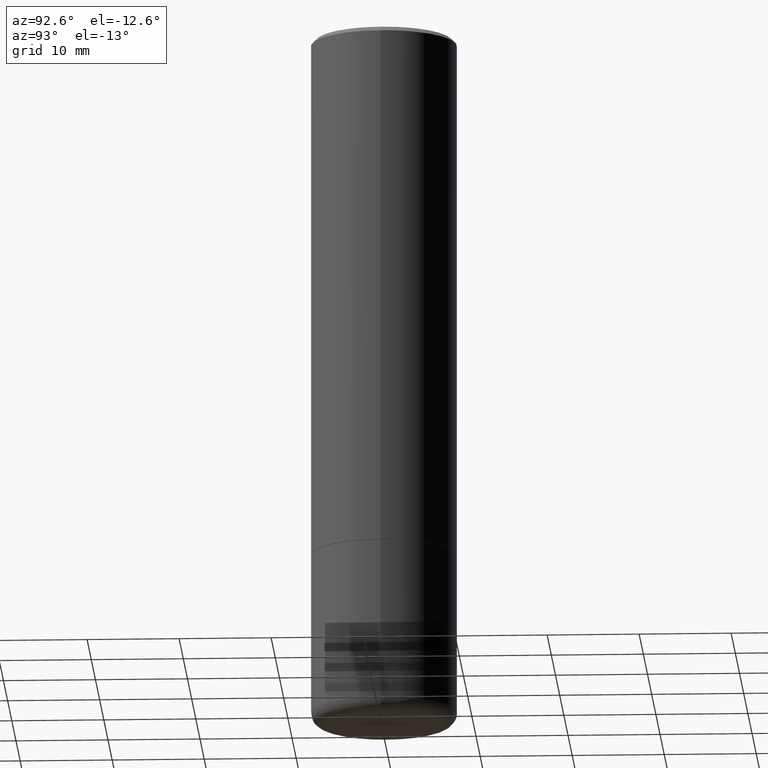
[diagram: clean part render]
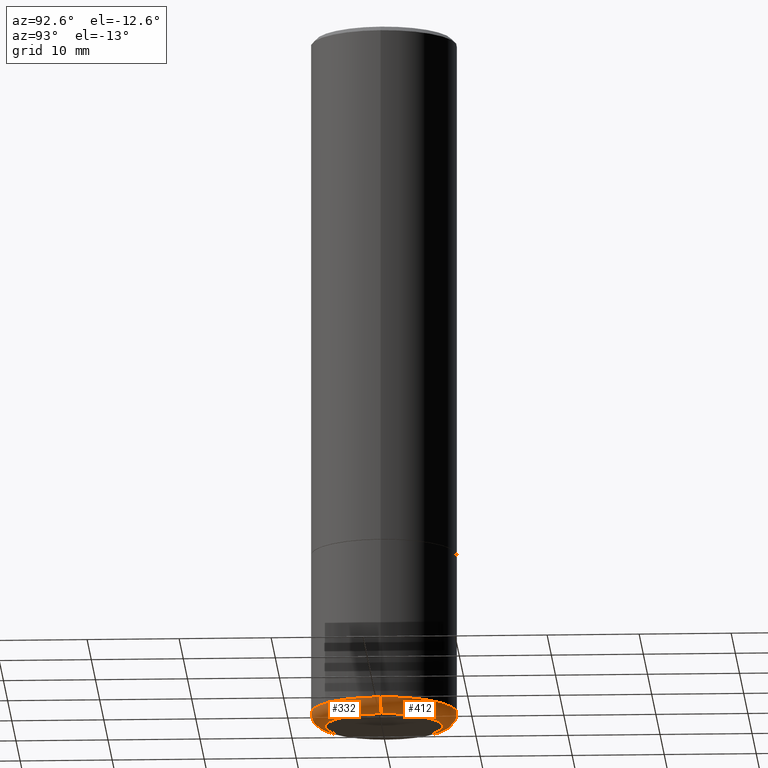
[diagram: same view with one multi-face feature highlighted, each face labeled with its STEP entity id]
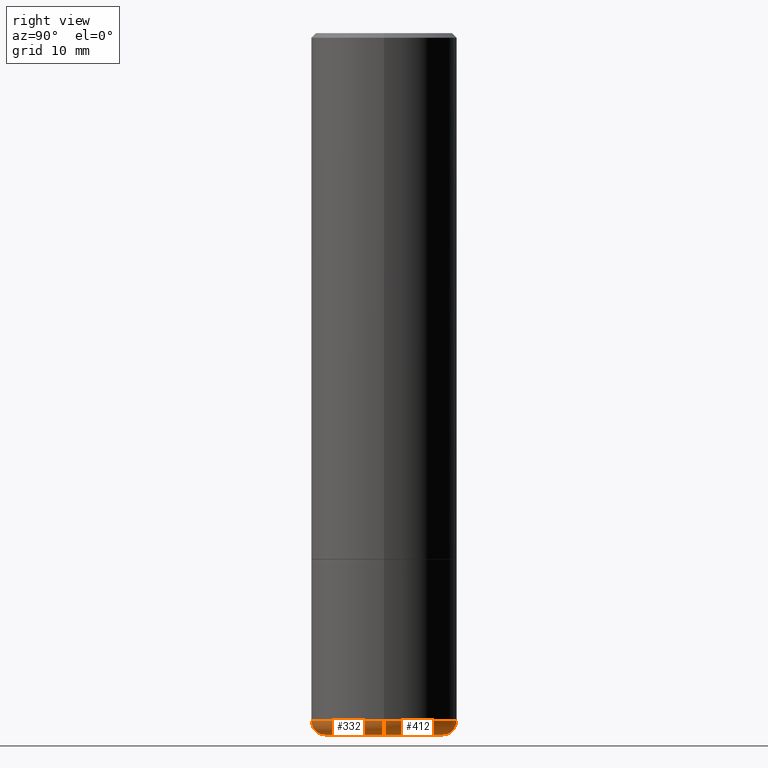
[diagram: same view with one multi-face feature highlighted, each face labeled with its STEP entity id]
A machine part, auxiliary view. The highlighted faces form ONE feature: a constant-radius fillet chain: 2 tangent blend faces with common blend radius 1.524 mm. The faces share edges in the B-rep.
A second angle (right view) of the same feature is appended — it is thin or edge-on in the first view.
Their STEP definitions:
[1] entity #332 (Torus):
#5 = EDGE_CURVE ( 'NONE', #424, #370, #228, .T. ) ;
#19 = AXIS2_PLACEMENT_3D ( 'NONE', #172, #212, #134 ) ;
#22 = CIRCLE ( 'NONE', #19, 0.06000000000000001166 ) ;
#31 = CARTESIAN_POINT ( 'NONE',  ( 0.2514528556137646809, -1.219950392283044754E-14, -2.999990861709383783 ) ) ;
#40 = CARTESIAN_POINT ( 'NONE',  ( 7.189678290184301639E-29, -1.026495513619884961E-14, -2.940000000000000391 ) ) ;
#57 = AXIS2_PLACEMENT_3D ( 'NONE', #208, #415, #166 ) ;
#88 = ORIENTED_EDGE ( 'NONE', *, *, #236, .F. ) ;
#94 = VERTEX_POINT ( 'NONE', #373 ) ;
#99 = ORIENTED_EDGE ( 'NONE', *, *, #5, .T. ) ;
#101 = CARTESIAN_POINT ( 'NONE',  ( -0.2514528556137646809, -8.718526204409729292E-15, -2.999990861709383783 ) ) ;
#103 = DIRECTION ( 'NONE',  ( -6.982962677686266711E-15, -1.000000000000000000, 3.491481338843145583E-15 ) ) ;
#108 = CARTESIAN_POINT ( 'NONE',  ( -0.3125000000000000000, -8.044509086948536533E-15, -2.940000000000000391 ) ) ;
#115 = AXIS2_PLACEMENT_3D ( 'NONE', #40, #169, #277 ) ;
#129 = DIRECTION ( 'NONE',  ( -2.445468806185136597E-29, 3.491481338843145583E-15, 1.000000000000000000 ) ) ;
#134 = DIRECTION ( 'NONE',  ( -1.000000000000000000, 7.105427357601006592E-15, 0.000000000000000000 ) ) ;
#139 = CIRCLE ( 'NONE', #115, 0.3125000000000000000 ) ;
#157 = DIRECTION ( 'NONE',  ( 1.000000000000000000, -6.982962677686269077E-15, 0.000000000000000000 ) ) ;
#158 = AXIS2_PLACEMENT_3D ( 'NONE', #339, #103, #406 ) ;
#164 = AXIS2_PLACEMENT_3D ( 'NONE', #269, #129, #157 ) ;
#166 = DIRECTION ( 'NONE',  ( 1.000000000000000000, -6.982962677686269077E-15, 4.883557194083114022E-29 ) ) ;
#169 = DIRECTION ( 'NONE',  ( -2.445468806185136597E-29, 3.491481338843145583E-15, 1.000000000000000000 ) ) ;
#172 = CARTESIAN_POINT ( 'NONE',  ( -0.2525000000000000022, -8.470834728404597024E-15, -2.940000000000000391 ) ) ;
#181 = EDGE_LOOP ( 'NONE', ( #432, #99, #323, #88 ) ) ;
#208 = CARTESIAN_POINT ( 'NONE',  ( 7.189678290184301639E-29, -1.026495513619884961E-14, -2.940000000000000391 ) ) ;
#212 = DIRECTION ( 'NONE',  ( 7.105427357601001859E-15, 1.000000000000000000, -3.491481338843145583E-15 ) ) ;
#214 = CIRCLE ( 'NONE', #158, 0.06000000000000001166 ) ;
#228 = CIRCLE ( 'NONE', #164, 0.2514528556137634041 ) ;
#236 = EDGE_CURVE ( 'NONE', #429, #94, #139, .T. ) ;
#244 = FACE_OUTER_BOUND ( 'NONE', #181, .T. ) ;
#269 = CARTESIAN_POINT ( 'NONE',  ( 7.336384071150766432E-29, -1.047441211035828263E-14, -2.999990861709383783 ) ) ;
#274 = TOROIDAL_SURFACE ( 'NONE', #57, 0.2525000000000000022, 0.06000000000000004635 ) ;
#277 = DIRECTION ( 'NONE',  ( 1.000000000000000000, -6.982962677686269077E-15, 0.000000000000000000 ) ) ;
#323 = ORIENTED_EDGE ( 'NONE', *, *, #423, .T. ) ;
#332 = ADVANCED_FACE ( 'NONE', ( #244 ), #274, .T. ) ;
#339 = CARTESIAN_POINT ( 'NONE',  ( 0.2525000000000000022, -1.202815321231463133E-14, -2.940000000000000391 ) ) ;
#370 = VERTEX_POINT ( 'NONE', #31 ) ;
#373 = CARTESIAN_POINT ( 'NONE',  ( 0.3125000000000000000, -1.244713097297580796E-14, -2.940000000000000391 ) ) ;
#404 = EDGE_CURVE ( 'NONE', #424, #429, #22, .T. ) ;
#406 = DIRECTION ( 'NONE',  ( 1.000000000000000000, -6.982962677686266711E-15, 0.000000000000000000 ) ) ;
#415 = DIRECTION ( 'NONE',  ( -2.445468806185136597E-29, 3.491481338843145583E-15, 1.000000000000000000 ) ) ;
#423 = EDGE_CURVE ( 'NONE', #370, #94, #214, .T. ) ;
#424 = VERTEX_POINT ( 'NONE', #101 ) ;
#429 = VERTEX_POINT ( 'NONE', #108 ) ;
#432 = ORIENTED_EDGE ( 'NONE', *, *, #404, .F. ) ;
[2] entity #412 (Torus):
#13 = CARTESIAN_POINT ( 'NONE',  ( 7.189678290184301639E-29, -1.026495513619884961E-14, -2.940000000000000391 ) ) ;
#18 = AXIS2_PLACEMENT_3D ( 'NONE', #13, #219, #386 ) ;
#19 = AXIS2_PLACEMENT_3D ( 'NONE', #172, #212, #134 ) ;
#22 = CIRCLE ( 'NONE', #19, 0.06000000000000001166 ) ;
#31 = CARTESIAN_POINT ( 'NONE',  ( 0.2514528556137646809, -1.219950392283044754E-14, -2.999990861709383783 ) ) ;
#43 = DIRECTION ( 'NONE',  ( 1.000000000000000000, -6.982962677686269077E-15, 4.883557194083114022E-29 ) ) ;
#56 = ORIENTED_EDGE ( 'NONE', *, *, #321, .T. ) ;
#87 = AXIS2_PLACEMENT_3D ( 'NONE', #203, #270, #43 ) ;
#93 = TOROIDAL_SURFACE ( 'NONE', #87, 0.2525000000000000022, 0.06000000000000004635 ) ;
#94 = VERTEX_POINT ( 'NONE', #373 ) ;
#101 = CARTESIAN_POINT ( 'NONE',  ( -0.2514528556137646809, -8.718526204409729292E-15, -2.999990861709383783 ) ) ;
#103 = DIRECTION ( 'NONE',  ( -6.982962677686266711E-15, -1.000000000000000000, 3.491481338843145583E-15 ) ) ;
#108 = CARTESIAN_POINT ( 'NONE',  ( -0.3125000000000000000, -8.044509086948536533E-15, -2.940000000000000391 ) ) ;
#113 = CIRCLE ( 'NONE', #18, 0.3125000000000000000 ) ;
#120 = ORIENTED_EDGE ( 'NONE', *, *, #423, .F. ) ;
#127 = ORIENTED_EDGE ( 'NONE', *, *, #404, .T. ) ;
#134 = DIRECTION ( 'NONE',  ( -1.000000000000000000, 7.105427357601006592E-15, 0.000000000000000000 ) ) ;
#158 = AXIS2_PLACEMENT_3D ( 'NONE', #339, #103, #406 ) ;
#172 = CARTESIAN_POINT ( 'NONE',  ( -0.2525000000000000022, -8.470834728404597024E-15, -2.940000000000000391 ) ) ;
#192 = EDGE_CURVE ( 'NONE', #94, #429, #113, .T. ) ;
#203 = CARTESIAN_POINT ( 'NONE',  ( 7.189678290184301639E-29, -1.026495513619884961E-14, -2.940000000000000391 ) ) ;
#212 = DIRECTION ( 'NONE',  ( 7.105427357601001859E-15, 1.000000000000000000, -3.491481338843145583E-15 ) ) ;
#214 = CIRCLE ( 'NONE', #158, 0.06000000000000001166 ) ;
#219 = DIRECTION ( 'NONE',  ( -2.445468806185136597E-29, 3.491481338843145583E-15, 1.000000000000000000 ) ) ;
#256 = EDGE_LOOP ( 'NONE', ( #56, #127, #353, #120 ) ) ;
#270 = DIRECTION ( 'NONE',  ( -2.445468806185136597E-29, 3.491481338843145583E-15, 1.000000000000000000 ) ) ;
#296 = AXIS2_PLACEMENT_3D ( 'NONE', #413, #303, #304 ) ;
#303 = DIRECTION ( 'NONE',  ( -2.445468806185136597E-29, 3.491481338843145583E-15, 1.000000000000000000 ) ) ;
#304 = DIRECTION ( 'NONE',  ( 1.000000000000000000, -6.982962677686269077E-15, 0.000000000000000000 ) ) ;
#311 = CIRCLE ( 'NONE', #296, 0.2514528556137634041 ) ;
#314 = FACE_OUTER_BOUND ( 'NONE', #256, .T. ) ;
#321 = EDGE_CURVE ( 'NONE', #370, #424, #311, .T. ) ;
#339 = CARTESIAN_POINT ( 'NONE',  ( 0.2525000000000000022, -1.202815321231463133E-14, -2.940000000000000391 ) ) ;
#353 = ORIENTED_EDGE ( 'NONE', *, *, #192, .F. ) ;
#370 = VERTEX_POINT ( 'NONE', #31 ) ;
#373 = CARTESIAN_POINT ( 'NONE',  ( 0.3125000000000000000, -1.244713097297580796E-14, -2.940000000000000391 ) ) ;
#386 = DIRECTION ( 'NONE',  ( 1.000000000000000000, -6.982962677686269077E-15, 0.000000000000000000 ) ) ;
#404 = EDGE_CURVE ( 'NONE', #424, #429, #22, .T. ) ;
#406 = DIRECTION ( 'NONE',  ( 1.000000000000000000, -6.982962677686266711E-15, 0.000000000000000000 ) ) ;
#412 = ADVANCED_FACE ( 'NONE', ( #314 ), #93, .T. ) ;
#413 = CARTESIAN_POINT ( 'NONE',  ( 7.336384071150766432E-29, -1.047441211035828263E-14, -2.999990861709383783 ) ) ;
#423 = EDGE_CURVE ( 'NONE', #370, #94, #214, .T. ) ;
#424 = VERTEX_POINT ( 'NONE', #101 ) ;
#429 = VERTEX_POINT ( 'NONE', #108 ) ;